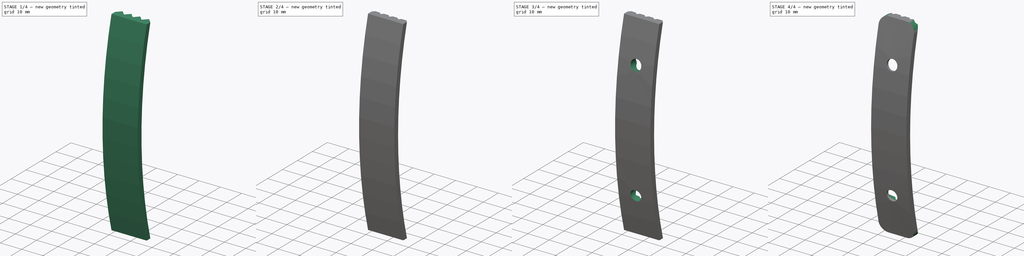
[diagram: build sequence overview — one tinted view per stage of 4, left to right]
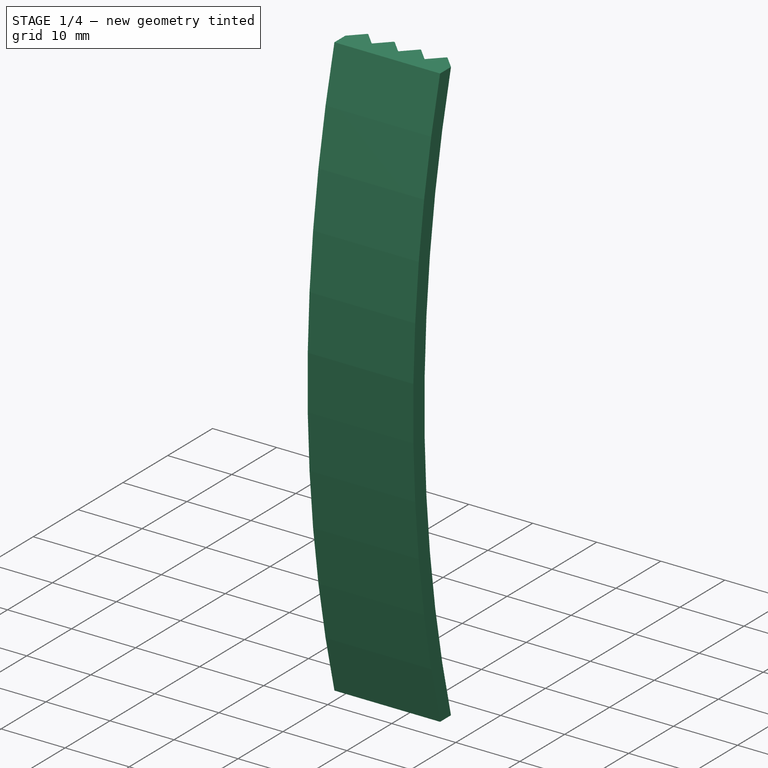
[diagram: stage 1 of 4 — iso view after this stage's code; geometry added in this stage tinted green]
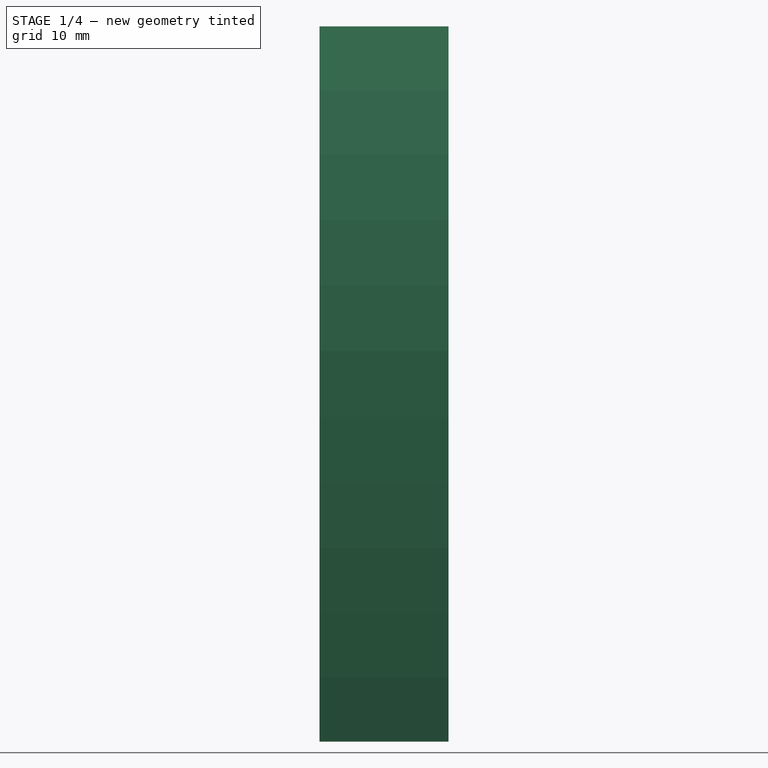
[diagram: stage 1 of 4 — front view after this stage's code; geometry added in this stage tinted green]
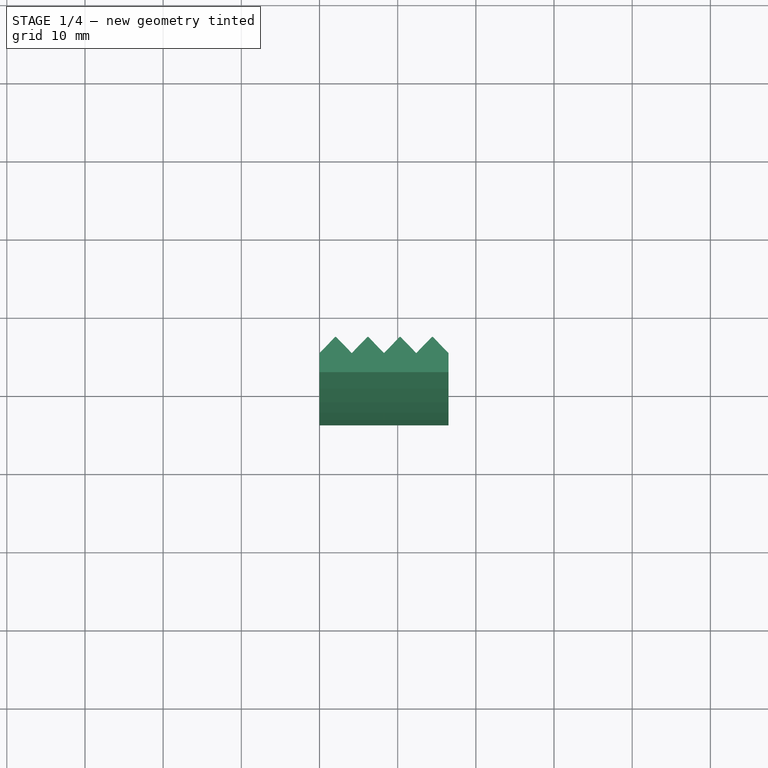
[diagram: stage 1 of 4 — top view after this stage's code; geometry added in this stage tinted green]
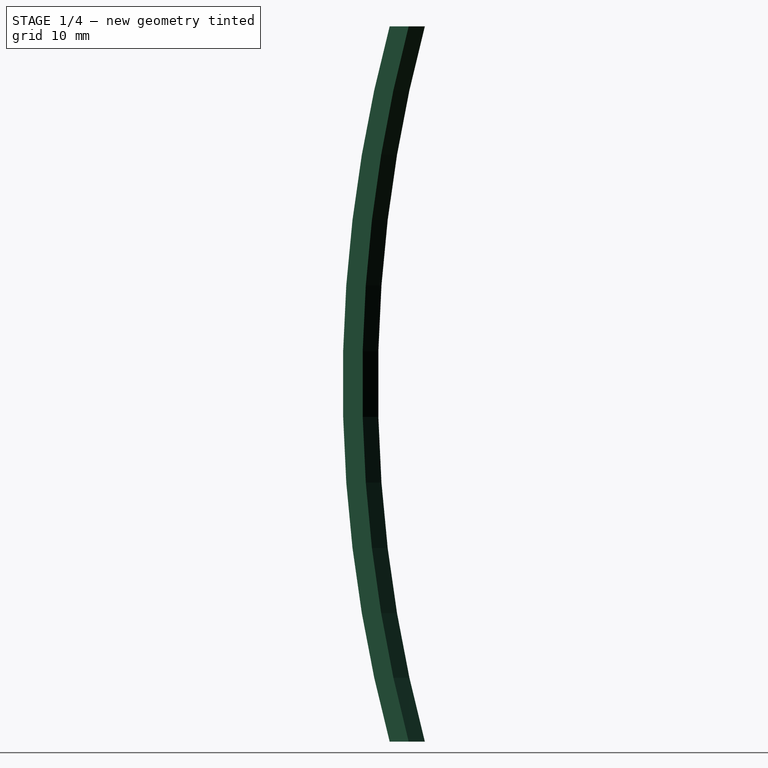
[diagram: stage 1 of 4 — right view after this stage's code; geometry added in this stage tinted green]
FCSTD DOCUMENT  (FreeCAD 0.19R24291 (Git))
Label: Side Folder Stock Pad
License: All rights reserved
LicenseURL: http://en.wikipedia.org/wiki/All_rights_reserved
objects: Sketcher::SketchObject×6, PartDesign::Pocket×4, PartDesign::PolarPattern×2, PartDesign::Mirrored×2, Spreadsheet::Sheet×1, PartDesign::Pad×1, PartDesign::SubtractivePipe×1, PartDesign::LinearPattern×1, PartDesign::Line×1, PartDesign::Body×1
note: 25 computed .brp shape members not serialized (recipe doc carries the construction recipe); baked Part::Feature solids carry a one-line shape summary decoded from their .brp

FEATURE [Spreadsheet::Sheet] Spreadsheet  label="Settings"
  cells = A1=StandardTolerance; B1(StandardTolerance)==0.2mm; A2=StockHeight; B2(StockHeight)==99.5mm - 4mm - 4mm; A3=StockCurveDeflection; B3(StockCurveDeflection)==6mm; A4=StockThickness; B4(StockThickness)==16.5mm; A5=StockPadThickness; B5(StockPadThickness)==4.5mm; A6=StockPadCrosshatchSize; B6(StockPadCrosshatchSize)==2mm; A7=StockUpperScrewHoleVerticalOffset; B7(StockUpperScrewHoleVerticalOffset)==18mm + StockScrewBodyHoleDiameter / 2 - 2mm; A8=StockScrewBodyHoleDiameter; B8(StockScrewBodyHoleDiameter)==5mm; A9=StockScrewHeadDiameter; B9(StockScrewHeadDiameter)==7.9mm; A10=StockScrewHeadHeight; B10(StockScrewHeadHeight)==1.2mm; A11=StockPadRoundingFilletRadius; B11(StockPadRoundingFilletRadius)==4mm
FEATURE [Sketcher::SketchObject] Sketch  label="MainBodySketch"
  FullyConstrained = true
  MapMode = 5
  Placement = pos=(0,0,0) rot=(0.57735,0.57735,0.57735;2.0944rad)
  Support = -> [YZ_Plane]
  expr: Constraints[21] = <<Settings>>.StockCurveDeflection
  expr: Constraints[12] = <<Settings>>.StockPadThickness
  expr: Constraints[3] = <<Settings>>.StockHeight
  sketch-geometry (7):
    g0: LineSegment StartX=1.5 StartY=45.75 StartZ=0 EndX=1.5 EndY=-45.75 EndZ=0
    g1: ArcOfCircle CenterX=172.922 CenterY=-3.59e-14 CenterZ=0 NormalX=0 NormalY=0 NormalZ=1 AngleXU=0 Radius=177.422 StartAngle=2.88079 EndAngle=3.4024
    g2: LineSegment StartX=1.5 StartY=45.75 StartZ=0 EndX=6 EndY=45.75 EndZ=0
    g3: LineSegment StartX=1.5 StartY=-45.75 StartZ=0 EndX=6 EndY=-45.75 EndZ=0
    g4: ArcOfCircle CenterX=177.422 CenterY=0 CenterZ=0 NormalX=0 NormalY=0 NormalZ=1 AngleXU=0 Radius=177.422 StartAngle=2.88079 EndAngle=3.4024
    g5: LineSegment StartX=6 StartY=45.75 StartZ=0 EndX=177.422 EndY=-7.1e-15 EndZ=0
    g6: LineSegment StartX=1.5 StartY=0 StartZ=0 EndX=-4.5 EndY=0 EndZ=0
  constraints (22):
    c: Coincident(g1,g0)
    c: Symmetric(g0,g0,g-1)
    c: Coincident(g0,g1)
    c: DistanceY(g0,g0) = 91.5
    c: Coincident(g2,g0)
    c: Horizontal(g2)
    c: Coincident(g3,g0)
    c: Horizontal(g3)
    c: PointOnObject(g4,g-1)
    c: Coincident(g4,g2)
    c: Coincident(g4,g3)
    c: Equal(g4,g1)
    c: DistanceX(g2,g2) = 4.5
    c: Coincident(g5,g4)
    c: Coincident(g5,g2)
    c: Distance(g5) = 177.422  'BodyCurveRadius'
    c: PointOnObject(g-1,g4)
    c: PointOnObject(g6,g0)
    c: PointOnObject(g6,g1)
    c: Horizontal(g6)
    c: PointOnObject(g6,g-1)
    c: DistanceX(g6,g6) = 6
FEATURE [PartDesign::Pad] Pad  label="MainBodyPad"
  Direction = (1,1,1)
  Length = 16.5
  Length2 = 100
  Placement = pos=(0,0,0) rot=(0.57735,0.57735,0.57735;2.0944rad)
  Profile = -> Sketch
  Type = 0
  expr: Length = Spreadsheet.StockThickness
FEATURE [Sketcher::SketchObject] Sketch001  label="VerticalCrosshatchSketch"
  FullyConstrained = true
  MapMode = 5
  Support = -> [XY_Plane]
  expr: Constraints[7] = <<Settings>>.StockPadCrosshatchSize
  sketch-geometry (3):
    g0: LineSegment StartX=-2 StartY=0 StartZ=0 EndX=2 EndY=0 EndZ=0
    g1: LineSegment StartX=2 StartY=0 StartZ=0 EndX=0 EndY=-2 EndZ=0
    g2: LineSegment StartX=0 StartY=-2 StartZ=0 EndX=-2 EndY=0 EndZ=0
  constraints (9):
    c: PointOnObject(g0,g-1)
    c: PointOnObject(g0,g-1)
    c: Coincident(g0,g1)
    c: PointOnObject(g1,g-2)
    c: Coincident(g1,g2)
    c: Coincident(g2,g0)
    c: Equal(g1,g2)
    c: DistanceY(g1,g0) = 2
    c: Angle(g0,g1) = 0.785398
FEATURE [PartDesign::SubtractivePipe] SubtractivePipe  label="VerticalCrosshatchSketchSubtractivePipe"
  AuxilleryCurvelinear = true
  AuxillerySpineTangent = false
  BaseFeature = -> Pad
  Binormal = (0,0,0)
  Mode = 0
  Placement = pos=(0,0,0) rot=(0.57735,0.57735,0.57735;2.0944rad)
  Profile = -> Sketch001
  Spine = -> Pad [Edge9]
  SpineTangent = false
  Transformation = 0
  Transition = 0
FEATURE [PartDesign::LinearPattern] LinearPattern  label="VerticalCrosshatchSketchLinearPattern"
  BaseFeature = -> SubtractivePipe
  Direction = -> X_Axis
  Length = 16.5
  Occurrences = 5
  Originals = -> [SubtractivePipe]
  Placement = pos=(0,0,0) rot=(0.57735,0.57735,0.57735;2.0944rad)
  expr: Length = <<Settings>>.StockThickness
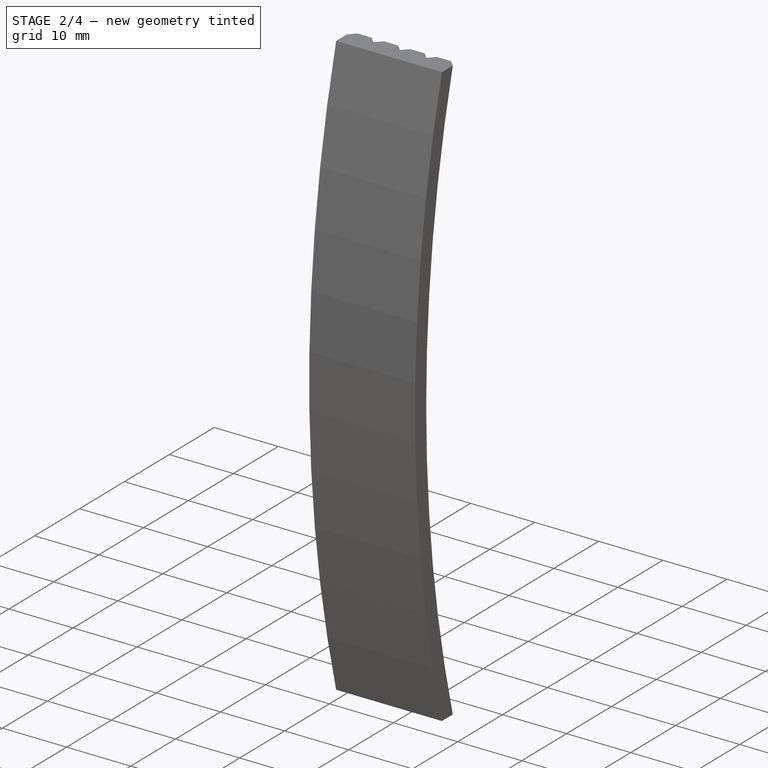
[diagram: stage 2 of 4 — iso view after this stage's code; geometry added in this stage tinted green]
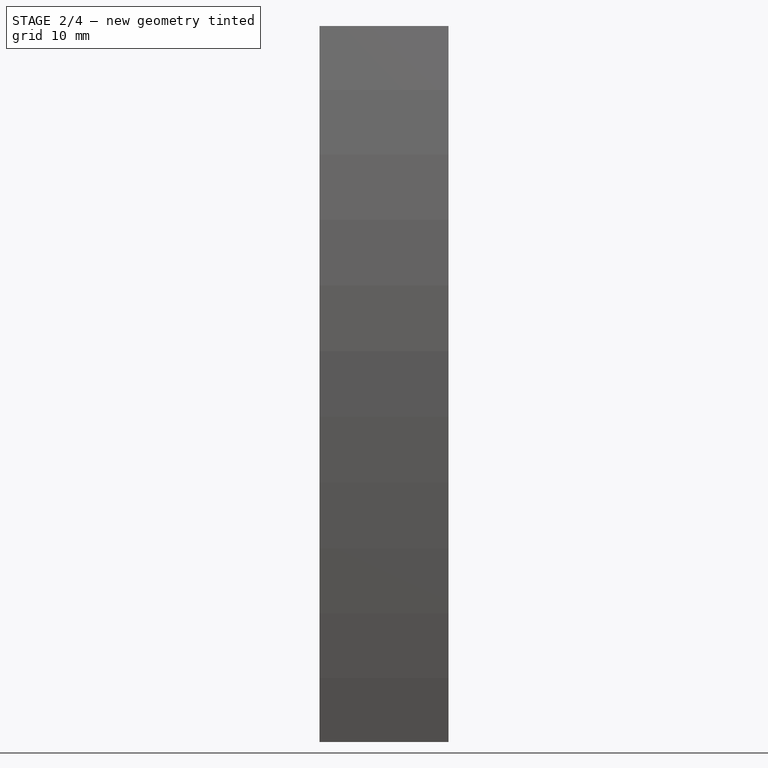
[diagram: stage 2 of 4 — front view after this stage's code; geometry added in this stage tinted green]
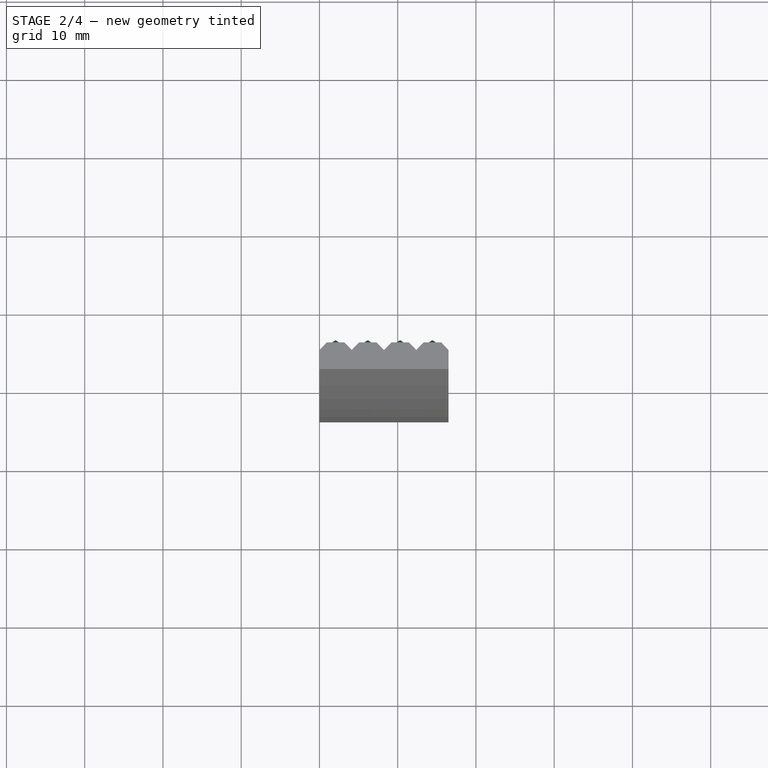
[diagram: stage 2 of 4 — top view after this stage's code; geometry added in this stage tinted green]
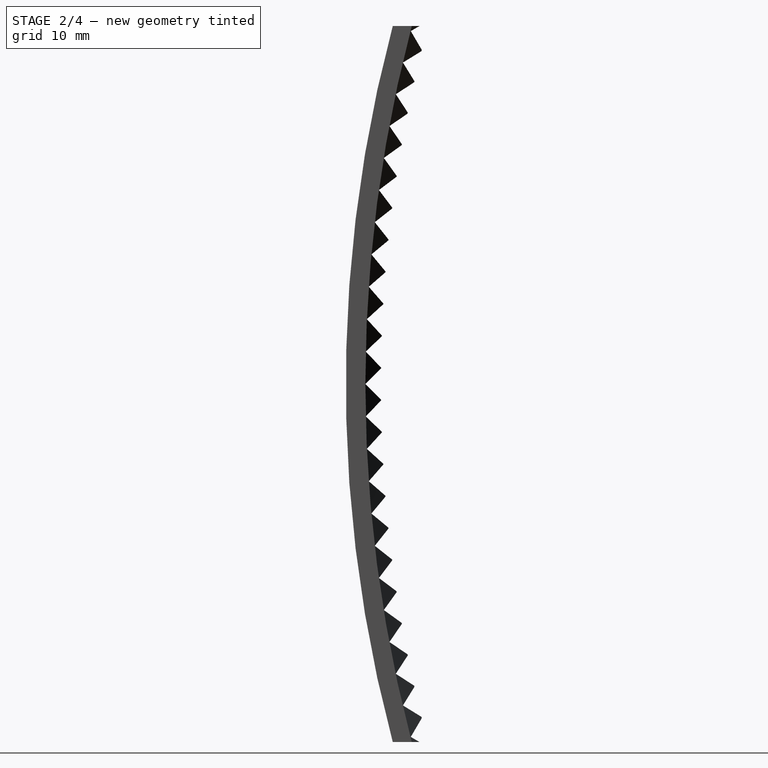
[diagram: stage 2 of 4 — right view after this stage's code; geometry added in this stage tinted green]
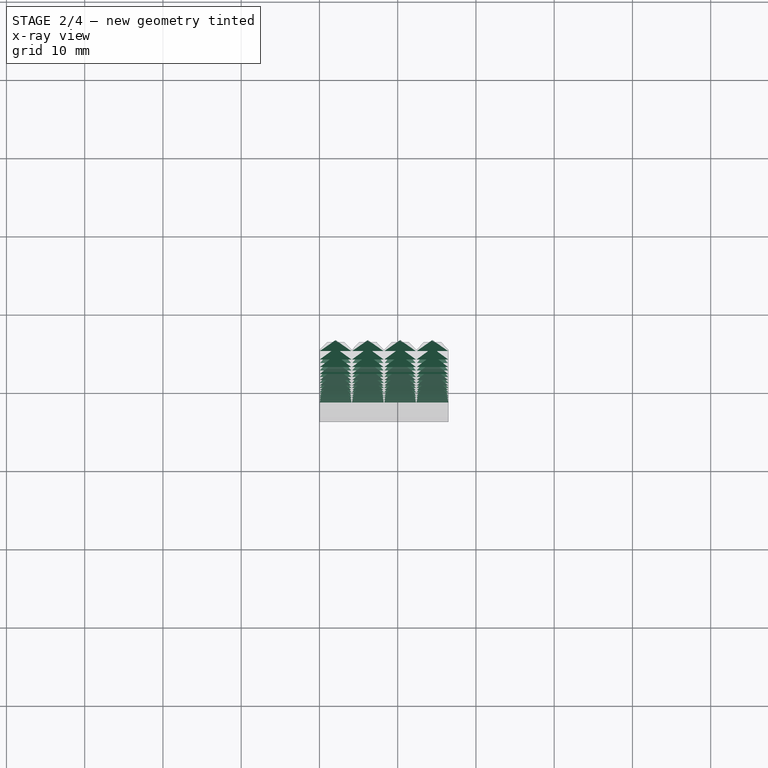
[diagram: stage 2 of 4 — x-ray composite at the top view; earlier geometry ghosted, this stage's added geometry solid]
FEATURE [Sketcher::SketchObject] Sketch002  label="HorizontalCrosshatchSketch"
  FullyConstrained = true
  MapMode = 5
  Placement = pos=(0,0,0) rot=(0.57735,0.57735,0.57735;2.0944rad)
  Support = -> [YZ_Plane]
  expr: Constraints[9] = <<MainBodySketch>>.Constraints.BodyCurveRadius
  expr: Constraints[5] = <<Settings>>.StockPadCrosshatchSize
  sketch-geometry (4):
    g0: LineSegment StartX=-2 StartY=0 StartZ=0 EndX=0.0114018 EndY=2.0114 EndZ=0
    g1: LineSegment StartX=-2 StartY=0 StartZ=0 EndX=0.0114018 EndY=-2.0114 EndZ=0
    g2: LineSegment StartX=-2 StartY=0 StartZ=0 EndX=-7.1e-15 EndY=0 EndZ=0
    g3: ArcOfCircle CenterX=177.422 CenterY=-3.26e-14 CenterZ=0 NormalX=0 NormalY=0 NormalZ=1 AngleXU=0 Radius=177.422 StartAngle=3.13026 EndAngle=3.15293
  constraints (12):
    c: PointOnObject(g0,g-1)
    c: Coincident(g1,g0)
    c: Equal(g1,g0)
    c: Coincident(g2,g0)
    c: Horizontal(g2)
    c: DistanceX(g2,g2) = 2
    c: Coincident(g3,g0)
    c: Coincident(g3,g1)
    c: PointOnObject(g-1,g3)
    c: Radius(g3) = 177.422
    c: Angle(g1,g0) = 1.5708
    c: Perpendicular(g2,g3) = 4.71239
FEATURE [PartDesign::Pocket] Pocket  label="HorizontalCrosshatchPocket"
  BaseFeature = -> LinearPattern
  Length = 5
  Length2 = 100
  Placement = pos=(0,0,0) rot=(0.57735,0.57735,0.57735;2.0944rad)
  Profile = -> Sketch002
  Reversed = true
  Type = 1
FEATURE [PartDesign::Line] DatumLine
  AttacherType = Attacher::AttachEngineLine
  AttachmentOffset = pos=(177.422,0,0) rot=(0,0,1;0rad)
  Length = 20
  MapMode = 42
  Placement = pos=(-1.97e-14,176.132,7.76e-14) rot=(0.57735,0.57735,0.57735;2.0944rad)
  ResizeMode = 0
  Support = -> [Pocket]
  expr: .AttachmentOffset.Base.x = <<MainBodySketch>>.Constraints.BodyCurveRadius
FEATURE [PartDesign::PolarPattern] PolarPattern  label="HorizontalCrosshatchPolarPattern1"
  Angle = 20
  Axis = -> DatumLine
  BaseFeature = -> Pocket
  Occurrences = 16
  Originals = -> [Pocket]
  Placement = pos=(0,0,0) rot=(0.57735,0.57735,0.57735;2.0944rad)
  Reversed = true
FEATURE [PartDesign::PolarPattern] PolarPattern001  label="HorizontalCrosshatchPolarPattern2"
  Angle = 20
  Axis = -> DatumLine
  BaseFeature = -> PolarPattern
  Occurrences = 16
  Originals = -> [Pocket]
  Placement = pos=(0,0,0) rot=(0.57735,0.57735,0.57735;2.0944rad)
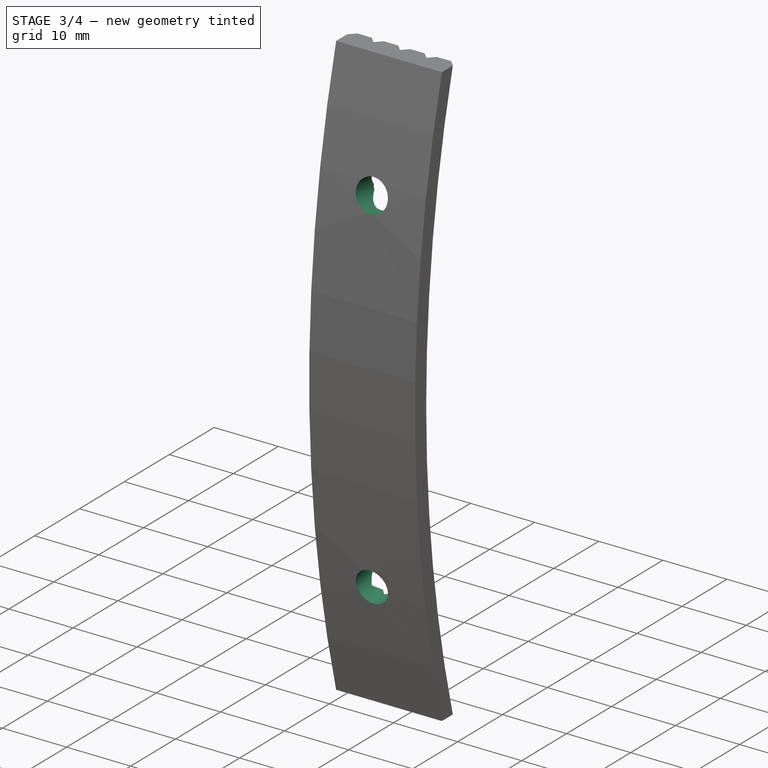
[diagram: stage 3 of 4 — iso view after this stage's code; geometry added in this stage tinted green]
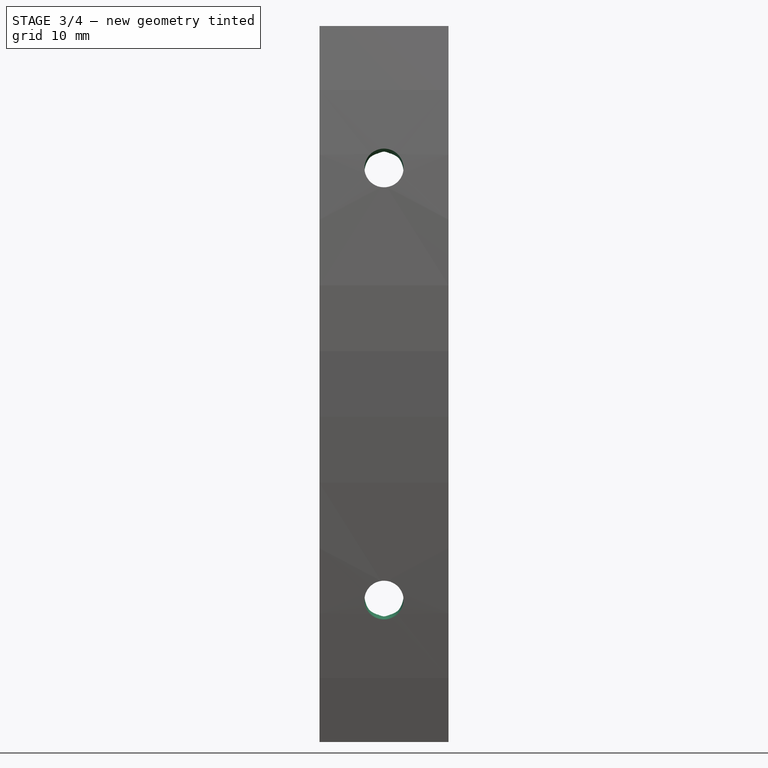
[diagram: stage 3 of 4 — front view after this stage's code; geometry added in this stage tinted green]
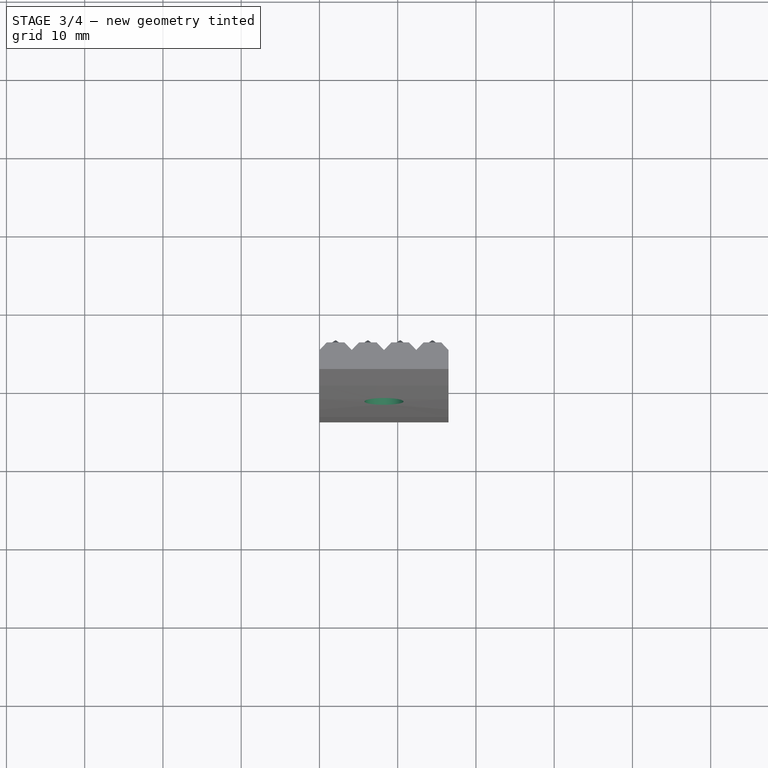
[diagram: stage 3 of 4 — top view after this stage's code; geometry added in this stage tinted green]
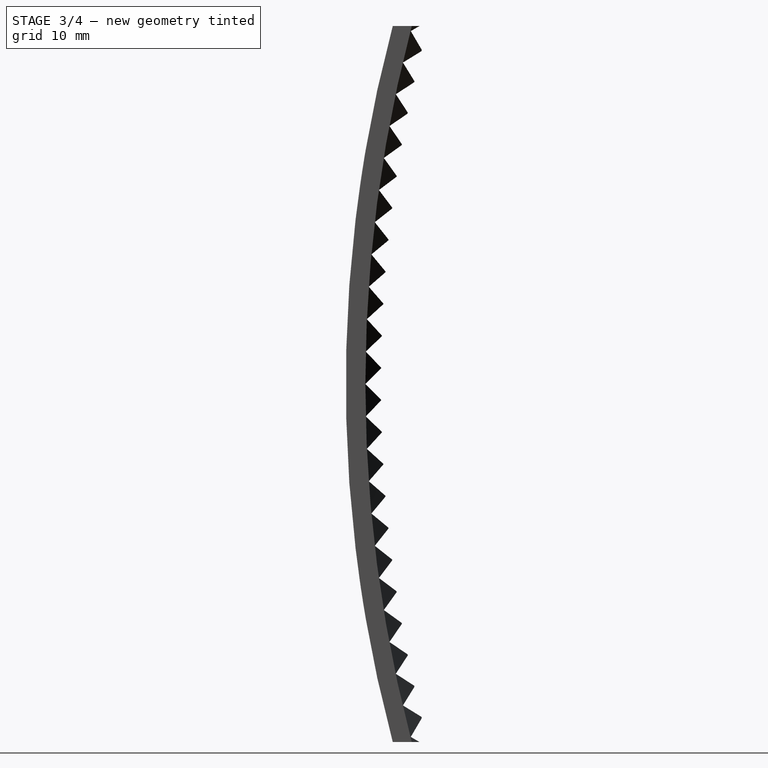
[diagram: stage 3 of 4 — right view after this stage's code; geometry added in this stage tinted green]
FEATURE [Sketcher::SketchObject] Sketch003  label="ScrewBodyHoleSketch"
  AttachmentOffset = pos=(0,27.25,0) rot=(1,0,0;-0.154199rad)
  FullyConstrained = true
  MapMode = 5
  Placement = pos=(0,6.1e-15,27.25) rot=(-1,0,0;4.86659rad)
  Support = -> [XZ_Plane]
  expr: .AttachmentOffset.Rotation.Angle = asin((<<Settings>>.StockHeight / 2 - <<Settings>>.StockUpperScrewHoleVerticalOffset) / <<MainBodySketch>>.Constraints.BodyCurveRadius) * -1
  expr: .AttachmentOffset.Base.y = <<Settings>>.StockHeight / 2 - <<Settings>>.StockUpperScrewHoleVerticalOffset
  expr: Constraints[2] = <<Settings>>.StockThickness / 2
  expr: Constraints[1] = <<Settings>>.StockScrewBodyHoleDiameter
  sketch-geometry (1):
    g0: Circle CenterX=8.25 CenterY=0 CenterZ=0 NormalX=0 NormalY=0 NormalZ=1 AngleXU=0 Radius=2.5
  constraints (3):
    c: PointOnObject(g0,g-1)
    c: Diameter(g0) = 5
    c: DistanceX(g-1,g0) = 8.25
FEATURE [PartDesign::Pocket] Pocket001  label="ScrewBodyHoleSketchPocket"
  BaseFeature = -> PolarPattern001
  Length = 5
  Length2 = 100
  Midplane = true
  Placement = pos=(0,0,0) rot=(0.57735,0.57735,0.57735;2.0944rad)
  Profile = -> Sketch003
  Reversed = true
  Type = 1
FEATURE [PartDesign::Mirrored] Mirrored  label="ScrewBodyHoleMirrored"
  BaseFeature = -> Pocket001
  MirrorPlane = -> XY_Plane
  Originals = -> [Pocket001]
  Placement = pos=(0,0,0) rot=(0.57735,0.57735,0.57735;2.0944rad)
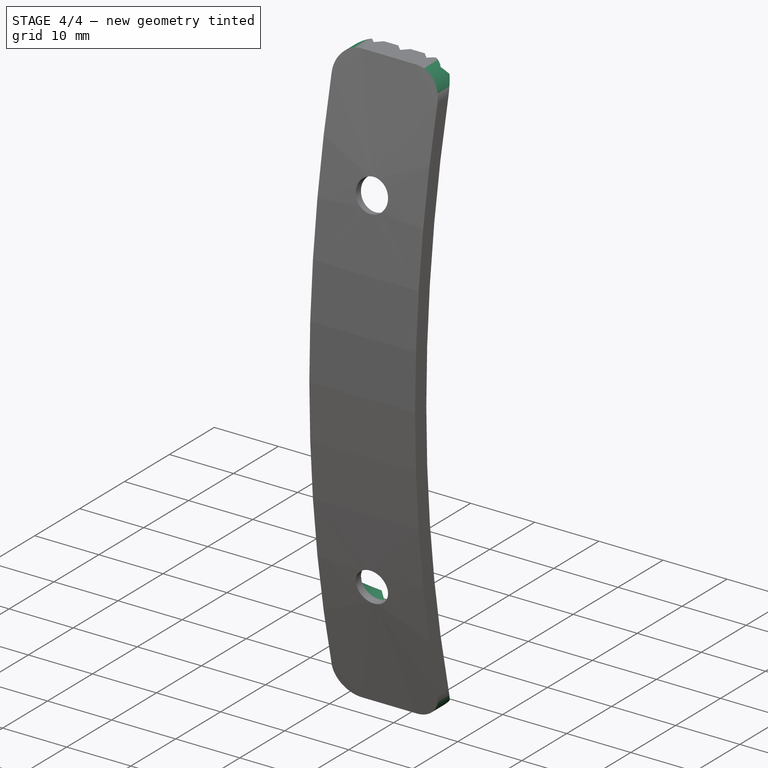
[diagram: stage 4 of 4 — iso view after this stage's code; geometry added in this stage tinted green]
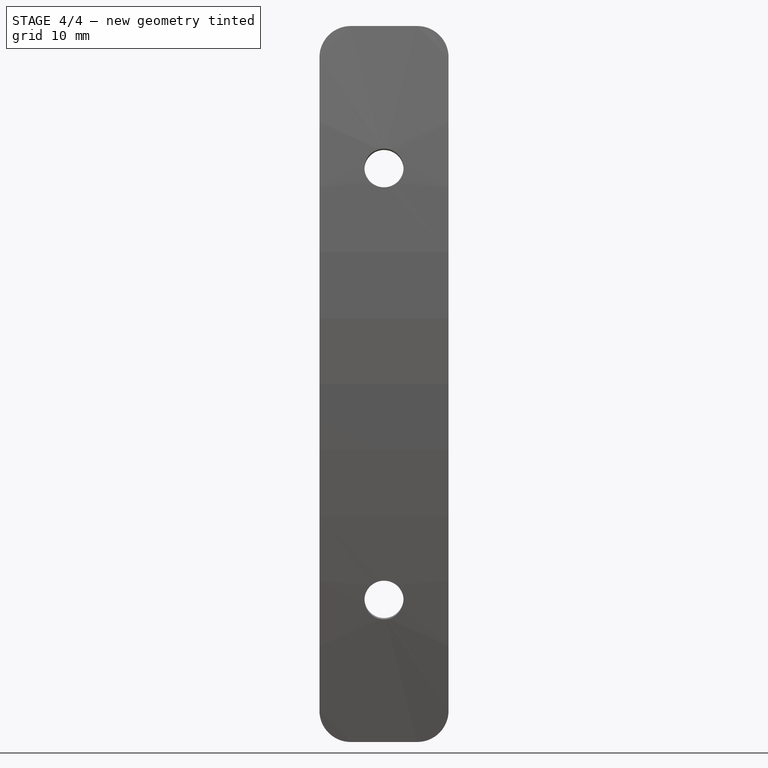
[diagram: stage 4 of 4 — front view after this stage's code; geometry added in this stage tinted green]
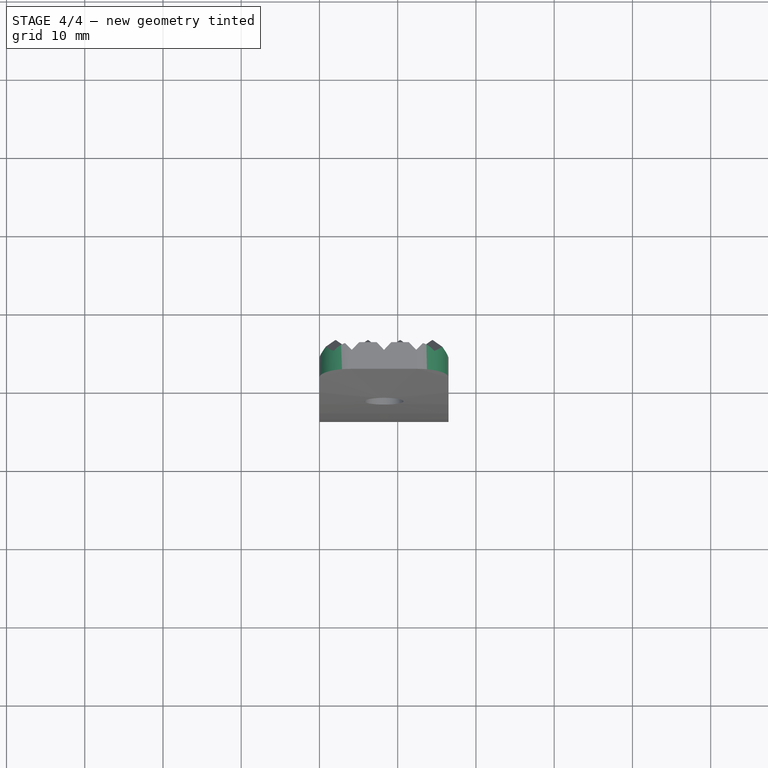
[diagram: stage 4 of 4 — top view after this stage's code; geometry added in this stage tinted green]
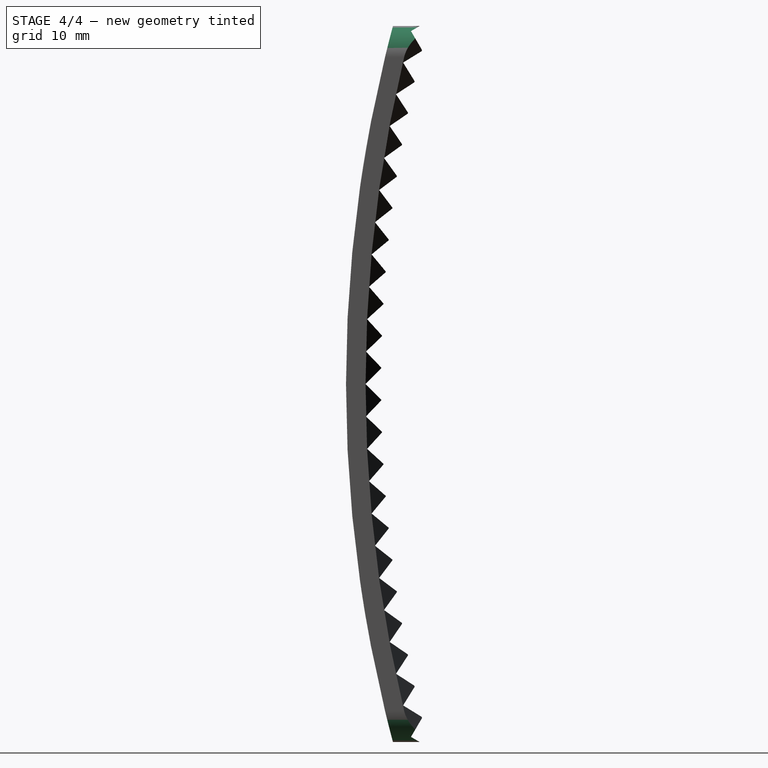
[diagram: stage 4 of 4 — right view after this stage's code; geometry added in this stage tinted green]
FEATURE [Sketcher::SketchObject] Sketch004  label="ScrewHeadHoleSketch"
  AttachmentOffset = pos=(0,27.25,0) rot=(1,0,0;-0.154199rad)
  FullyConstrained = true
  MapMode = 5
  Placement = pos=(0,6.1e-15,27.25) rot=(-1,0,0;4.86659rad)
  Support = -> [XZ_Plane]
  expr: .AttachmentOffset.Base.y = <<Settings>>.StockHeight / 2 - <<Settings>>.StockUpperScrewHoleVerticalOffset
  expr: .AttachmentOffset.Rotation.Angle = asin((<<Settings>>.StockHeight / 2 - <<Settings>>.StockUpperScrewHoleVerticalOffset) / <<MainBodySketch>>.Constraints.BodyCurveRadius) * -1
  expr: Constraints[2] = <<Settings>>.StockScrewHeadDiameter
  expr: Constraints[1] = <<Settings>>.StockThickness / 2
  sketch-geometry (1):
    g0: Circle CenterX=8.25 CenterY=0 CenterZ=0 NormalX=0 NormalY=0 NormalZ=1 AngleXU=0 Radius=3.95
  constraints (3):
    c: PointOnObject(g0,g-1)
    c: DistanceX(g-1,g0) = 8.25
    c: Diameter(g0) = 7.9
FEATURE [PartDesign::Pocket] Pocket002  label="ScrewHeadHolePocket"
  BaseFeature = -> Mirrored
  Length = 5
  Length2 = 1.2
  Placement = pos=(0,0,0) rot=(0.57735,0.57735,0.57735;2.0944rad)
  Profile = -> Sketch004
  Type = 4
  expr: Length2 = <<Settings>>.StockScrewHeadHeight
FEATURE [PartDesign::Mirrored] Mirrored001  label="ScrewHeadHoleMirrored"
  BaseFeature = -> Pocket002
  MirrorPlane = -> XY_Plane
  Originals = -> [Pocket002]
  Placement = pos=(0,0,0) rot=(0.57735,0.57735,0.57735;2.0944rad)
FEATURE [Sketcher::SketchObject] Sketch005  label="RoundingFilletSketch"
  FullyConstrained = true
  MapMode = 5
  Placement = pos=(0,0,0) rot=(1,0,0;1.5708rad)
  Support = -> [XZ_Plane]
  expr: Constraints[33] = <<Settings>>.StockPadRoundingFilletRadius
  expr: Constraints[6] = <<Settings>>.StockHeight
  expr: Constraints[5] = <<Settings>>.StockThickness
  sketch-geometry (16):
    g0: LineSegment StartX=4 StartY=45.75 StartZ=0 EndX=12.5 EndY=45.75 EndZ=0
    g1: LineSegment StartX=16.5 StartY=41.75 StartZ=0 EndX=16.5 EndY=-41.75 EndZ=0
    g2: LineSegment StartX=12.5 StartY=-45.75 StartZ=0 EndX=4 EndY=-45.75 EndZ=0
    g3: LineSegment StartX=0 StartY=-41.75 StartZ=0 EndX=0 EndY=41.75 EndZ=0
    g4: LineSegment StartX=-20.6294 StartY=57.9365 StartZ=0 EndX=37.3435 EndY=57.9365 EndZ=0
    g5: LineSegment StartX=37.3435 StartY=57.9365 StartZ=0 EndX=37.3435 EndY=-56.9572 EndZ=0
    g6: LineSegment StartX=37.3435 StartY=-56.9572 StartZ=0 EndX=-20.6294 EndY=-56.9572 EndZ=0
    g7: LineSegment StartX=-20.6294 StartY=-56.9572 StartZ=0 EndX=-20.6294 EndY=57.9365 EndZ=0
    g8: ArcOfCircle CenterX=4 CenterY=-41.75 CenterZ=0 NormalX=0 NormalY=0 NormalZ=1 AngleXU=0 Radius=4 StartAngle=3.14159 EndAngle=4.71239
    g9: GeomPoint X=0 Y=-45.75 Z=0
    g10: ArcOfCircle CenterX=12.5 CenterY=-41.75 CenterZ=0 NormalX=0 NormalY=0 NormalZ=1 AngleXU=0 Radius=4 StartAngle=4.71239 EndAngle=6.28319
    g11: GeomPoint X=16.5 Y=-45.75 Z=0
    g12: ArcOfCircle CenterX=12.5 CenterY=41.75 CenterZ=0 NormalX=0 NormalY=0 NormalZ=1 AngleXU=0 Radius=4 StartAngle=-9e-16 EndAngle=1.5708
    g13: GeomPoint X=16.5 Y=45.75 Z=0
    g14: ArcOfCircle CenterX=4 CenterY=41.75 CenterZ=0 NormalX=0 NormalY=0 NormalZ=1 AngleXU=0 Radius=4 StartAngle=1.5708 EndAngle=3.14159
    g15: GeomPoint X=0 Y=45.75 Z=0
  constraints (37):
    c: Horizontal(g0)
    c: Horizontal(g2)
    c: Vertical(g1)
    c: PointOnObject(g15,g-2)
    c: Symmetric(g9,g15,g-1)
    c: DistanceX(g15,g13) = 16.5
    c: DistanceY(g11,g13) = 91.5
    c: Coincident(g4,g5)
    c: Coincident(g5,g6)
    c: Coincident(g6,g7)
    c: Coincident(g7,g4)
    c: Horizontal(g4)
    c: Horizontal(g6)
    c: Vertical(g5)
    c: Vertical(g7)
    c: Block(g4)
    c: Block(g6)
    c: PointOnObject(g9,g3)
    c: PointOnObject(g9,g2)
    c: Tangent(g3,g8) = 1.5708
    c: Tangent(g2,g8) = 1.5708
    c: PointOnObject(g11,g2)
    c: PointOnObject(g11,g1)
    c: Tangent(g2,g10) = 1.5708
    c: Tangent(g1,g10) = 1.5708
    c: PointOnObject(g13,g1)
    c: PointOnObject(g13,g0)
    c: Tangent(g1,g12) = 1.5708
    c: Tangent(g0,g12) = 1.5708
    c: PointOnObject(g15,g3)
    c: PointOnObject(g15,g0)
    c: Tangent(g3,g14) = 1.5708
    c: Tangent(g0,g14) = 1.5708
    c: Radius(g14) = 4
    c: Equal(g14,g12)
    c: Equal(g14,g8)
    c: Equal(g14,g10)
FEATURE [PartDesign::Pocket] Pocket003  label="RoundingFilletPocket"
  BaseFeature = -> Mirrored001
  Length = 5
  Length2 = 100
  Midplane = true
  Placement = pos=(0,0,0) rot=(0.57735,0.57735,0.57735;2.0944rad)
  Profile = -> Sketch005
  Type = 1
FEATURE [PartDesign::Body] Body
  Group = -> [Sketch,Pad,Sketch001,SubtractivePipe,LinearPattern,Sketch002,Pocket,DatumLine,PolarPattern,PolarPattern001,Sketch003,Pocket001,Mirrored,Sketch004,Pocket002,Mirrored001,Sketch005,Pocket003]
  Origin = -> Origin
  Tip = -> Pocket003
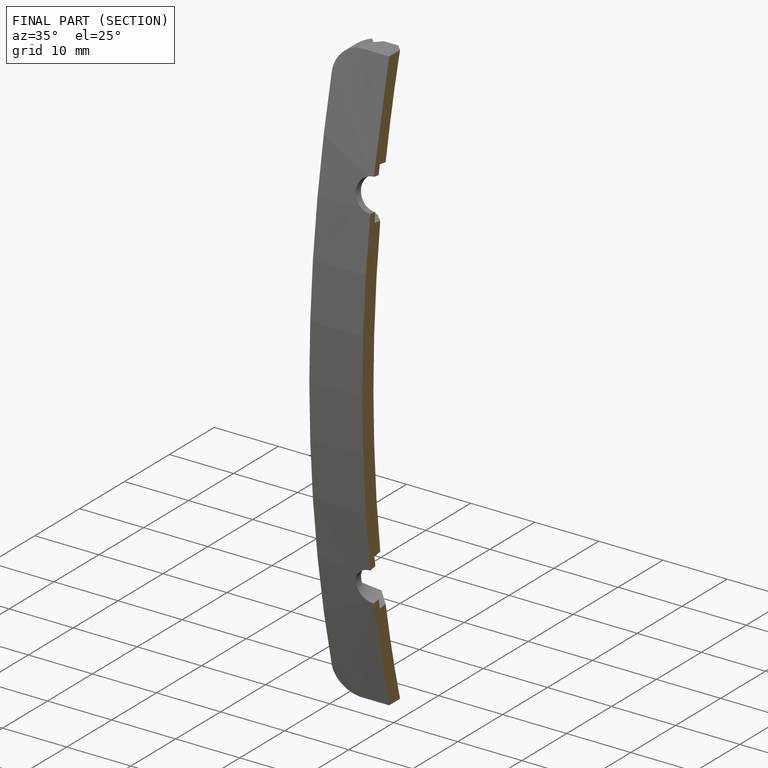
[diagram: finished part — half-section view (interior)]
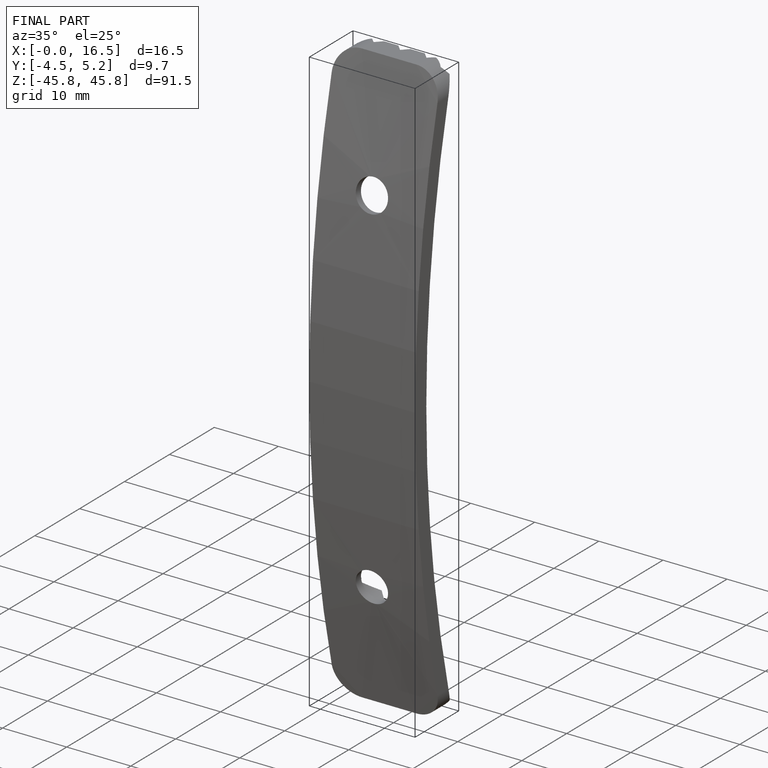
[diagram: finished part — iso view with bounding-box wireframe]
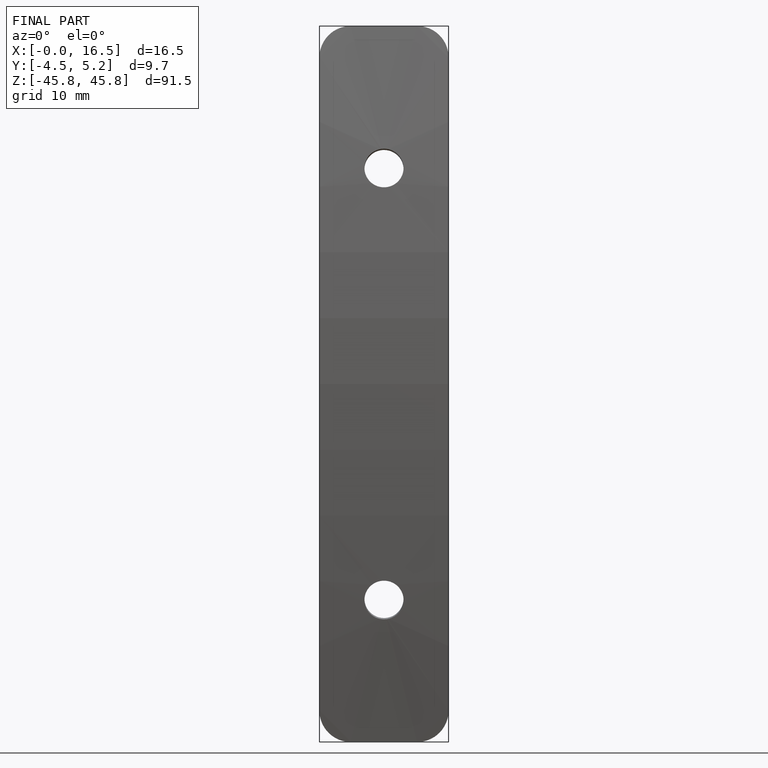
[diagram: finished part — front view with bounding-box wireframe]
